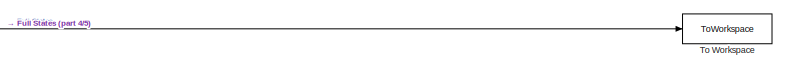
[diagram: root canvas - part 1/5, top right region]
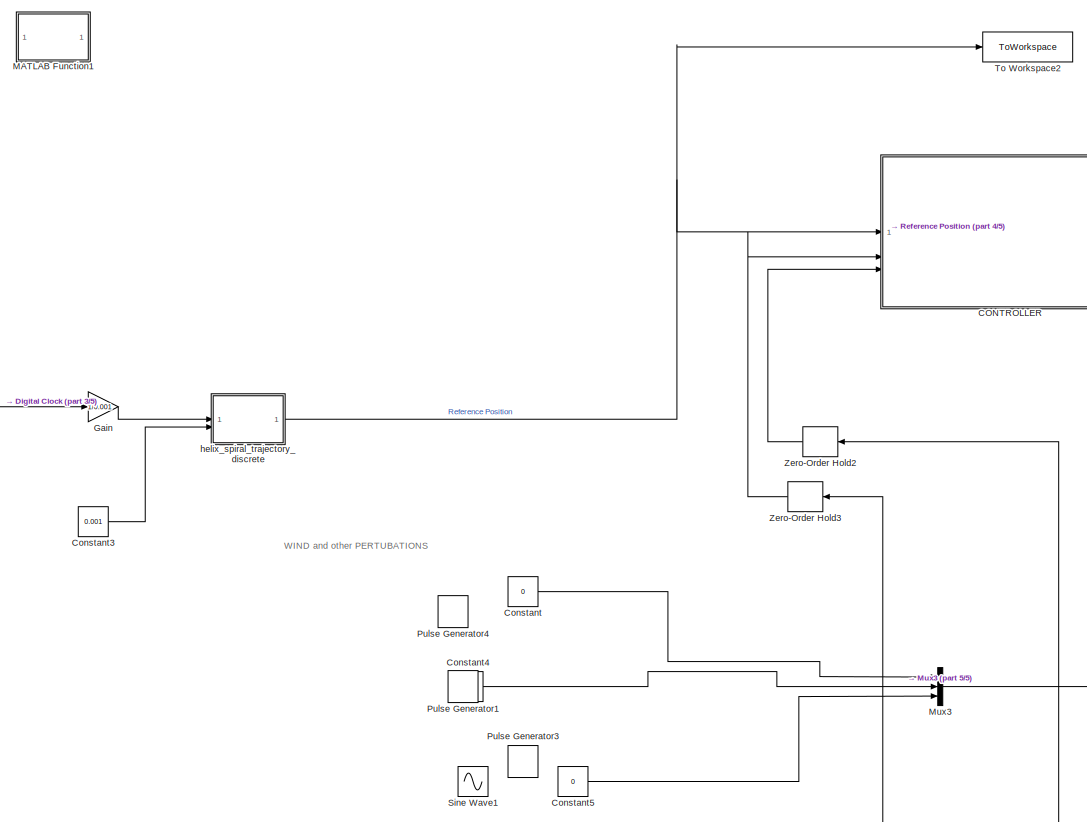
[diagram: root canvas - part 2/5, middle left region]
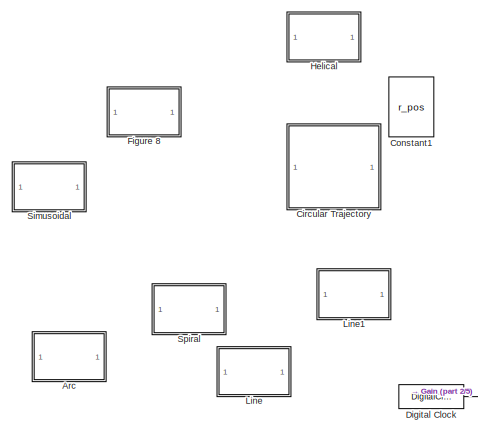
[diagram: root canvas - part 3/5, top left region]
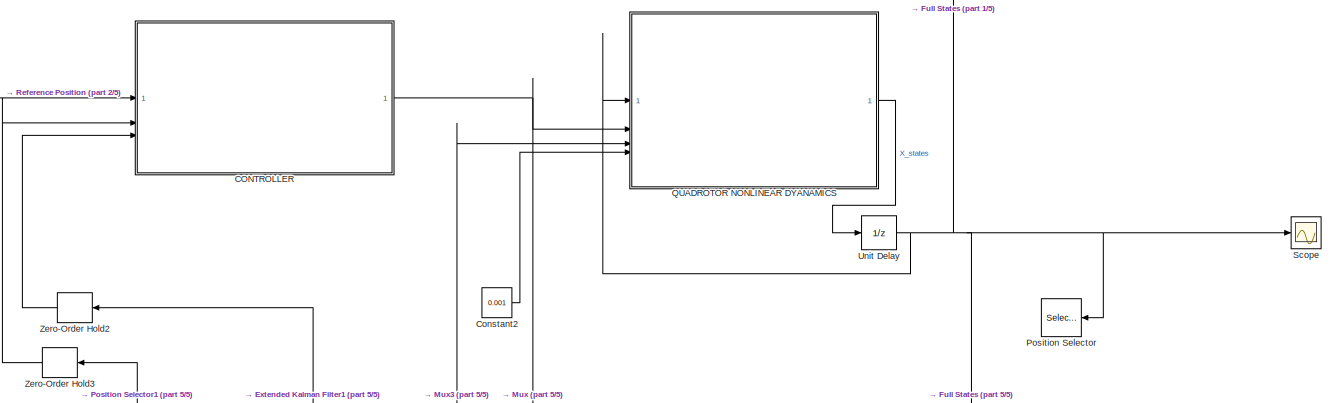
[diagram: root canvas - part 4/5, top center region]
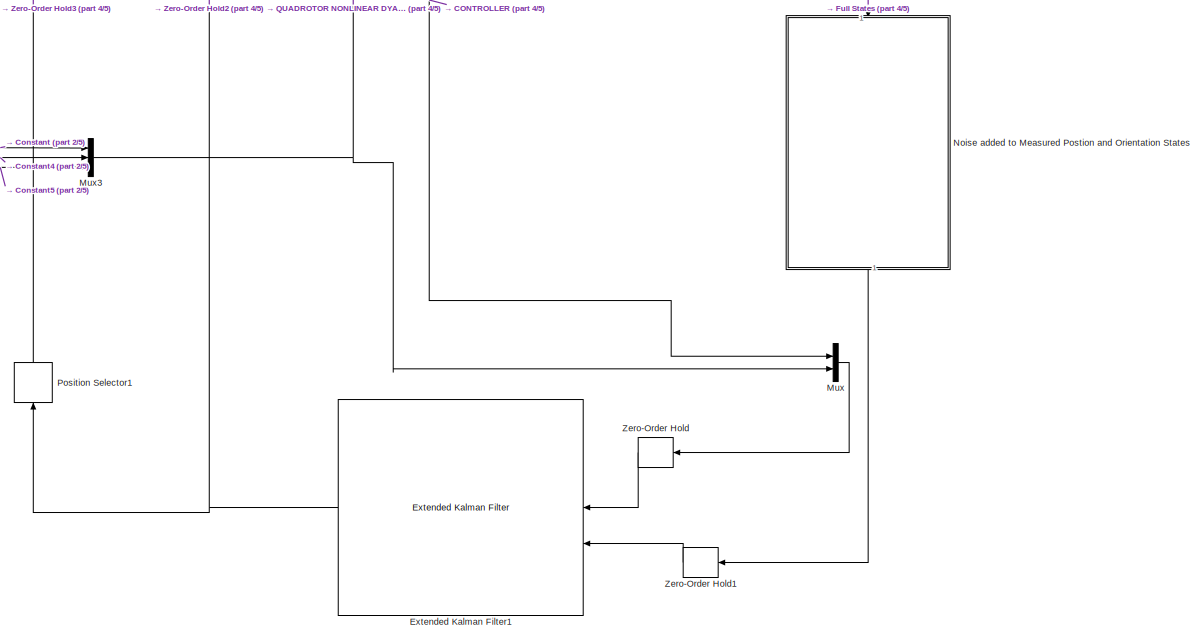
[diagram: root canvas - part 5/5, bottom center region]
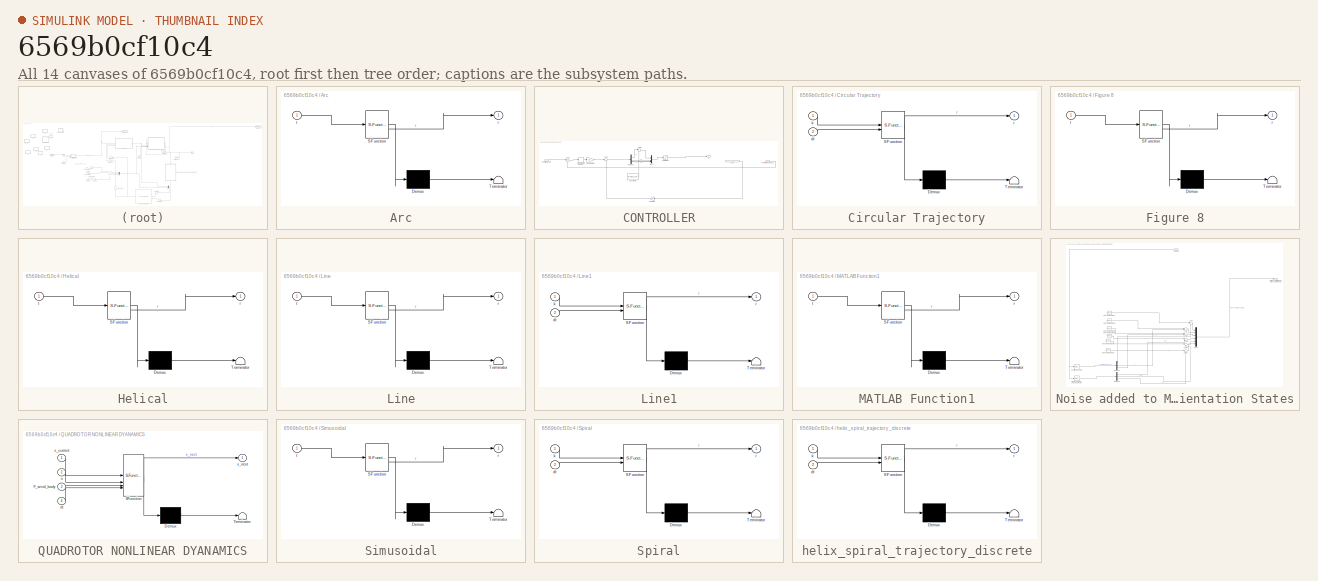
[diagram: thumbnail index - all 14 canvases of the model, root first then tree order]
MODEL slx_6569b0cf10c4
KIND model
CONFIG AbsTol = auto
CONFIG EnableMultiTasking = off
CONFIG FixedStep = auto
CONFIG MaxStep = auto
CONFIG MinStep = auto
CONFIG RelTol = 1e-3
CONFIG SampleTimeConstraint = Unconstrained
CONFIG SolverName = VariableStepAuto
CONFIG StartTime = 0.0
CONFIG StopTime = 10.0
BLOCK [SubSystem] Arc
  ErrorFcn = Stateflow.Translate.translate
  PermitHierarchicalResolution = ExplicitOnly
  SFBlockType = MATLAB Function
  TreatAsAtomicUnit = on
BLOCK [Demux] Arc/ Demux 
  Outputs = 1
BLOCK [S-Function] Arc/ SFunction 
  EnableBusSupport = on
  FunctionName = sf_sfun
  PortCounts = [1 2]
  SFcnIsStateOwnerBlock = off
  SFunctionDeploymentMode = off
  Tag = Stateflow S-Function 6
BLOCK [Terminator] Arc/ Terminator 
BLOCK [Outport] Arc/r
BLOCK [Inport] Arc/t
BLOCK [SubSystem] CONTROLLER
BLOCK [Constant] CONTROLLER/Constant2
  Value = m_val*g_val
BLOCK [Demux] CONTROLLER/Demux6
BLOCK [DiscreteIntegrator] CONTROLLER/Discrete-Time Integrator
  ICPrevOutput = DiscIntNeverNeededParam
  ICPrevScaledInput = DiscIntNeverNeededParam
  InitialConditionSetting = Auto
  SampleTime = 0.001
BLOCK [Gain] CONTROLLER/Integrator Gain
  Gain = Ki
  Multiplication = Matrix(K*u)
BLOCK [Gain] CONTROLLER/LQR Gain
  Gain = Kx
  Multiplication = Matrix(K*u)
BLOCK [Mux] CONTROLLER/Mux2
  DisplayOption = bar
BLOCK [Inport] CONTROLLER/Position feedback
  Port = 2
BLOCK [Inport] CONTROLLER/Position inputs
BLOCK [Saturate] CONTROLLER/Saturation1
  LowerLimit = [0; -0.15; -0.10; -0.10]
  UpperLimit = [40; 0.15; 0.1;0.1]
BLOCK [Sum] CONTROLLER/Sum
  Inputs = |--
BLOCK [Sum] CONTROLLER/Sum1
  Inputs = |+-
BLOCK [Sum] CONTROLLER/Sum3
  Inputs = |++
BLOCK [Outport] CONTROLLER/u
BLOCK [Inport] CONTROLLER/xhat
  IconDisplay = Signal name
  Port = 3
BLOCK [SubSystem] Circular Trajectory
  ErrorFcn = Stateflow.Translate.translate
  PermitHierarchicalResolution = ExplicitOnly
  SFBlockType = MATLAB Function
  TreatAsAtomicUnit = on
BLOCK [Demux] Circular Trajectory/ Demux 
  Outputs = 1
BLOCK [S-Function] Circular Trajectory/ SFunction 
  EnableBusSupport = on
  FunctionName = sf_sfun
  PortCounts = [2 2]
  SFcnIsStateOwnerBlock = off
  SFunctionDeploymentMode = off
  Tag = Stateflow S-Function 1
BLOCK [Terminator] Circular Trajectory/ Terminator 
BLOCK [Inport] Circular Trajectory/dt
  Port = 2
BLOCK [Inport] Circular Trajectory/k
BLOCK [Outport] Circular Trajectory/r
BLOCK [Constant] Constant
  Value = 0
BLOCK [Constant] Constant1
  Value = r_pos
  VectorParams1D = off
BLOCK [Constant] Constant2
  Value = 0.001
BLOCK [Constant] Constant3
  Value = 0.001
BLOCK [Constant] Constant4
  Value = 0
BLOCK [Constant] Constant5
  Value = 0
BLOCK [DigitalClock] Digital Clock
  SampleTime = 0.01
BLOCK [Reference] Extended Kalman Filter1  REF=sharedTrackingLibrary/Extended Kalman Filter
  LibrarySourceBlock = cstblocks/State Estimation/Extended Kalman Filter
  SourceBlock = sharedTrackingLibrary/Extended Kalman Filter
  SourceType = Extended Kalman Filter
BLOCK [SubSystem] Figure 8
  ErrorFcn = Stateflow.Translate.translate
  PermitHierarchicalResolution = ExplicitOnly
  SFBlockType = MATLAB Function
  TreatAsAtomicUnit = on
BLOCK [Demux] Figure 8/ Demux 
  Outputs = 1
BLOCK [S-Function] Figure 8/ SFunction 
  EnableBusSupport = on
  FunctionName = sf_sfun
  PortCounts = [1 2]
  SFcnIsStateOwnerBlock = off
  SFunctionDeploymentMode = off
  Tag = Stateflow S-Function 9
BLOCK [Terminator] Figure 8/ Terminator 
BLOCK [Outport] Figure 8/r
BLOCK [Inport] Figure 8/t
BLOCK [Gain] Gain
  Gain = 1/0.001
BLOCK [SubSystem] Helical
  ErrorFcn = Stateflow.Translate.translate
  PermitHierarchicalResolution = ExplicitOnly
  SFBlockType = MATLAB Function
  TreatAsAtomicUnit = on
BLOCK [Demux] Helical/ Demux 
  Outputs = 1
BLOCK [S-Function] Helical/ SFunction 
  EnableBusSupport = on
  FunctionName = sf_sfun
  PortCounts = [1 2]
  SFcnIsStateOwnerBlock = off
  SFunctionDeploymentMode = off
  Tag = Stateflow S-Function 10
BLOCK [Terminator] Helical/ Terminator 
BLOCK [Outport] Helical/r
BLOCK [Inport] Helical/t
BLOCK [SubSystem] Line
  ErrorFcn = Stateflow.Translate.translate
  PermitHierarchicalResolution = ExplicitOnly
  SFBlockType = MATLAB Function
  TreatAsAtomicUnit = on
BLOCK [Demux] Line/ Demux 
  Outputs = 1
BLOCK [S-Function] Line/ SFunction 
  EnableBusSupport = on
  FunctionName = sf_sfun
  PortCounts = [1 2]
  SFcnIsStateOwnerBlock = off
  SFunctionDeploymentMode = off
  Tag = Stateflow S-Function 2
BLOCK [Terminator] Line/ Terminator 
BLOCK [Outport] Line/r
BLOCK [Inport] Line/t
BLOCK [SubSystem] Line1
  ErrorFcn = Stateflow.Translate.translate
  PermitHierarchicalResolution = ExplicitOnly
  SFBlockType = MATLAB Function
  TreatAsAtomicUnit = on
BLOCK [Demux] Line1/ Demux 
  Outputs = 1
BLOCK [S-Function] Line1/ SFunction 
  EnableBusSupport = on
  FunctionName = sf_sfun
  PortCounts = [2 2]
  SFcnIsStateOwnerBlock = off
  SFunctionDeploymentMode = off
  Tag = Stateflow S-Function 5
BLOCK [Terminator] Line1/ Terminator 
BLOCK [Inport] Line1/dt
  Port = 2
BLOCK [Inport] Line1/k
BLOCK [Outport] Line1/r
BLOCK [SubSystem] MATLAB Function1
  ErrorFcn = Stateflow.Translate.translate
  PermitHierarchicalResolution = ExplicitOnly
  SFBlockType = MATLAB Function
  TreatAsAtomicUnit = on
BLOCK [Demux] MATLAB Function1/ Demux 
  Outputs = 1
BLOCK [S-Function] MATLAB Function1/ SFunction 
  EnableBusSupport = on
  FunctionName = sf_sfun
  PortCounts = [1 2]
  SFcnIsStateOwnerBlock = off
  SFunctionDeploymentMode = off
  Tag = Stateflow S-Function 3
BLOCK [Terminator] MATLAB Function1/ Terminator 
BLOCK [Outport] MATLAB Function1/r
BLOCK [Inport] MATLAB Function1/t
BLOCK [Mux] Mux
  DisplayOption = bar
  Inputs = 2
BLOCK [Mux] Mux3
  DisplayOption = bar
  Inputs = 3
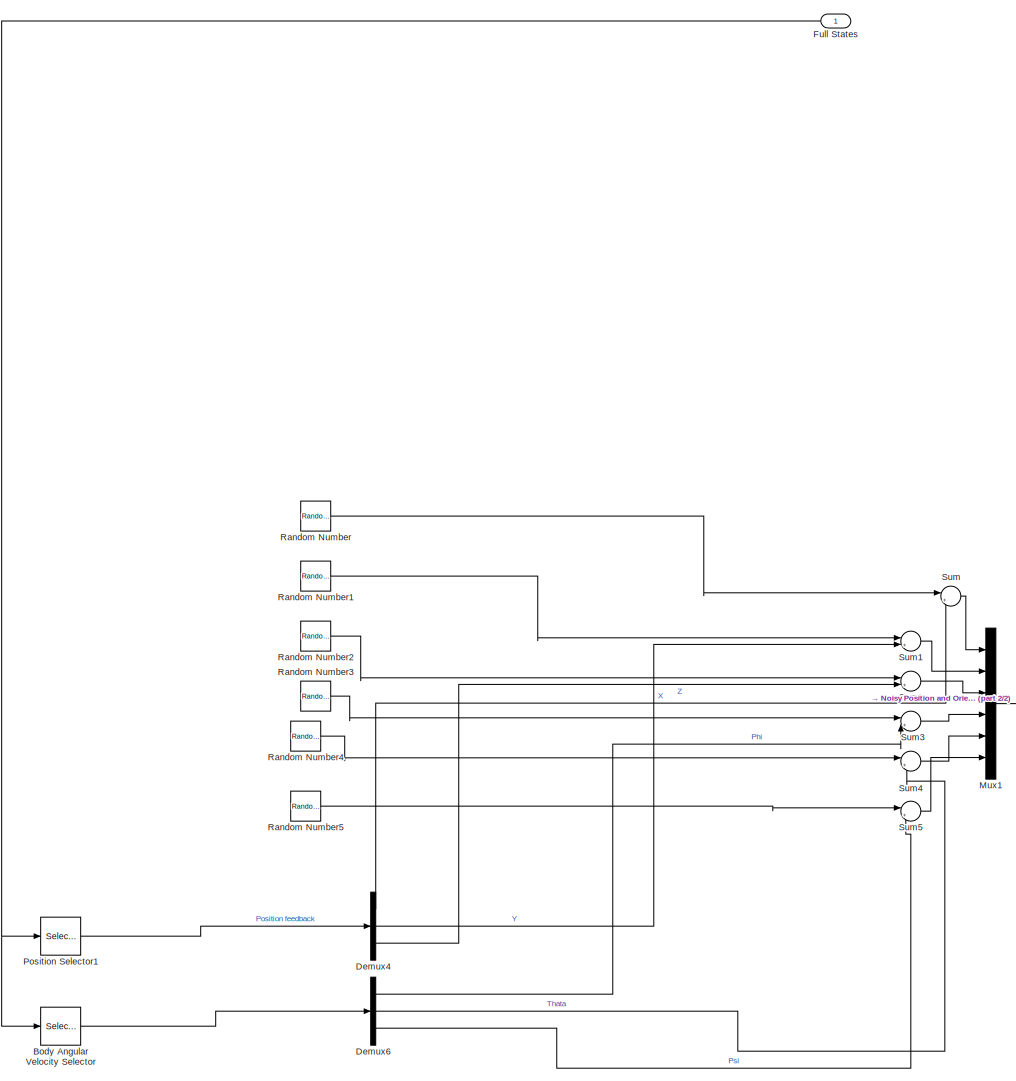
[diagram: Noise added to Measured Postion and Orientation States - part 1/2, left side, full height]
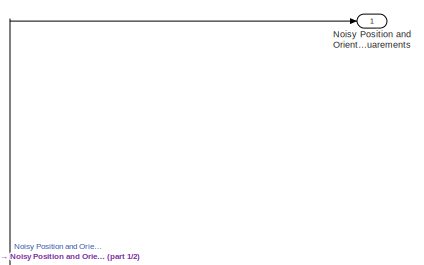
[diagram: Noise added to Measured Postion and Orientation States - part 2/2, middle right region]
BLOCK [SubSystem] Noise added to Measured Postion and Orientation States
  NameLocation = left
BLOCK [Selector] Noise added to Measured Postion and Orientation States/Body Angular Velocity Selector
  IndexOptions = Index vector (dialog)
  Indices = [10 11 12]
  InputPortWidth = 12
  OutputSizes = 1
BLOCK [Demux] Noise added to Measured Postion and Orientation States/Demux4
  Outputs = 3
BLOCK [Demux] Noise added to Measured Postion and Orientation States/Demux6
  Outputs = 3
BLOCK [Inport] Noise added to Measured Postion and Orientation States/Full States
BLOCK [Mux] Noise added to Measured Postion and Orientation States/Mux1
  DisplayOption = bar
  Inputs = 6
BLOCK [Outport] Noise added to Measured Postion and Orientation States/Noisy Position and Orientation Mesuarements
BLOCK [Selector] Noise added to Measured Postion and Orientation States/Position Selector1
  IndexOptions = Index vector (dialog)
  Indices = [1 2 3]
  InputPortWidth = 12
  OutputSizes = 1
BLOCK [RandomNumber] Noise added to Measured Postion and Orientation States/Random Number
  SampleTime = 0.1
  Variance = 0.05*0.05
BLOCK [RandomNumber] Noise added to Measured Postion and Orientation States/Random Number1
  SampleTime = 0.1
  Variance = 0.05*0.05
BLOCK [RandomNumber] Noise added to Measured Postion and Orientation States/Random Number2
  SampleTime = 0.1
  Variance = 0.05*0.05
BLOCK [RandomNumber] Noise added to Measured Postion and Orientation States/Random Number3
  Mean = 0.01*0.01
  SampleTime = 0.1
BLOCK [RandomNumber] Noise added to Measured Postion and Orientation States/Random Number4
  Mean = 0.01*0.01
  SampleTime = 0.1
BLOCK [RandomNumber] Noise added to Measured Postion and Orientation States/Random Number5
  Mean = 0.01*0.01
  SampleTime = 0.1
BLOCK [Sum] Noise added to Measured Postion and Orientation States/Sum
  Inputs = |++
BLOCK [Sum] Noise added to Measured Postion and Orientation States/Sum1
  Inputs = |++
BLOCK [Sum] Noise added to Measured Postion and Orientation States/Sum2
  Inputs = |++
BLOCK [Sum] Noise added to Measured Postion and Orientation States/Sum3
  Inputs = |++
BLOCK [Sum] Noise added to Measured Postion and Orientation States/Sum4
  Inputs = |++
BLOCK [Sum] Noise added to Measured Postion and Orientation States/Sum5
  Inputs = |++
BLOCK [Selector] Position Selector
  IndexOptions = Index vector (dialog)
  Indices = [1 2 3]
  InputPortWidth = 12
  OutputSizes = 1
BLOCK [Selector] Position Selector1
  IndexOptions = Index vector (dialog)
  Indices = [1 2 3]
  InputPortWidth = 12
  NameLocation = right
  OutputSizes = 1
BLOCK [DiscretePulseGenerator] Pulse Generator1
  Amplitude = 10
  Period = 10
  PhaseDelay = 20
  PulseWidth = 5
  SampleTime = 10
BLOCK [DiscretePulseGenerator] Pulse Generator3
  Amplitude = 3
  Period = 5
  PhaseDelay = 100
  PulseType = Time based
BLOCK [DiscretePulseGenerator] Pulse Generator4
  Amplitude = 3
  Period = 10
  PhaseDelay = 50
  PulseType = Time based
  PulseWidth = 5
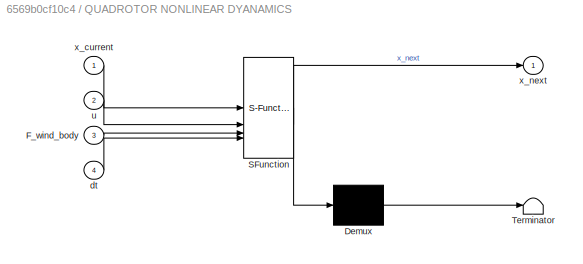
BLOCK [SubSystem] QUADROTOR NONLINEAR DYANAMICS
  ErrorFcn = Stateflow.Translate.translate
  PermitHierarchicalResolution = ExplicitOnly
  SFBlockType = MATLAB Function
  TreatAsAtomicUnit = on
BLOCK [Demux] QUADROTOR NONLINEAR DYANAMICS/ Demux 
  Outputs = 1
BLOCK [S-Function] QUADROTOR NONLINEAR DYANAMICS/ SFunction 
  EnableBusSupport = on
  FunctionName = sf_sfun
  PortCounts = [4 2]
  SFcnIsStateOwnerBlock = off
  SFunctionDeploymentMode = off
  Tag = Stateflow S-Function 4
BLOCK [Terminator] QUADROTOR NONLINEAR DYANAMICS/ Terminator 
BLOCK [Inport] QUADROTOR NONLINEAR DYANAMICS/F_wind_body
  Port = 3
BLOCK [Inport] QUADROTOR NONLINEAR DYANAMICS/dt
  Port = 4
BLOCK [Inport] QUADROTOR NONLINEAR DYANAMICS/u
  Port = 2
BLOCK [Inport] QUADROTOR NONLINEAR DYANAMICS/x_current
BLOCK [Outport] QUADROTOR NONLINEAR DYANAMICS/x_next
BLOCK [Scope] Scope
  Floating = off
  NumInputPorts = 1
  ScopeSpecificationString = Simulink.scopes.TimeScopeBlockCfg('CurrentConfiguration', extmgr.ConfigurationSet(extmgr.Configuration('Core','General UI',true),extmgr.Configuration('Core','Source UI',true),extmgr.Configuration('Sources','WiredSimulink',true,'DataLoggingVariableName','ScopeData1'),extmgr.Configuration('Visuals','Time Domain',true),extmgr.Configuration('Tools','Plot Navigation',true),extmgr.Configuration('Tools',...<+40ch>
BLOCK [SubSystem] Simusoidal
  ErrorFcn = Stateflow.Translate.translate
  PermitHierarchicalResolution = ExplicitOnly
  SFBlockType = MATLAB Function
  TreatAsAtomicUnit = on
BLOCK [Demux] Simusoidal/ Demux 
  Outputs = 1
BLOCK [S-Function] Simusoidal/ SFunction 
  EnableBusSupport = on
  FunctionName = sf_sfun
  PortCounts = [1 2]
  SFcnIsStateOwnerBlock = off
  SFunctionDeploymentMode = off
  Tag = Stateflow S-Function 7
BLOCK [Terminator] Simusoidal/ Terminator 
BLOCK [Outport] Simusoidal/r
BLOCK [Inport] Simusoidal/t
BLOCK [Sin] Sine Wave1
  Amplitude = 5
  Frequency = 0.5
  SampleTime = 0
BLOCK [SubSystem] Spiral
  ErrorFcn = Stateflow.Translate.translate
  PermitHierarchicalResolution = ExplicitOnly
  SFBlockType = MATLAB Function
  TreatAsAtomicUnit = on
BLOCK [Demux] Spiral/ Demux 
  Outputs = 1
BLOCK [S-Function] Spiral/ SFunction 
  EnableBusSupport = on
  FunctionName = sf_sfun
  PortCounts = [2 2]
  SFcnIsStateOwnerBlock = off
  SFunctionDeploymentMode = off
  Tag = Stateflow S-Function 8
BLOCK [Terminator] Spiral/ Terminator 
BLOCK [Inport] Spiral/dt
  Port = 2
BLOCK [Inport] Spiral/k
BLOCK [Outport] Spiral/r
BLOCK [ToWorkspace] To Workspace
  MaxDataPoints = inf
  SampleTime = -1
  VariableName = X_states
BLOCK [ToWorkspace] To Workspace2
  FixptAsFi = on
  MaxDataPoints = inf
  SampleTime = -1
  SaveFormat = Timeseries
  VariableName = r_traj
BLOCK [UnitDelay] Unit Delay
  HasFrameUpgradeWarning = on
  SampleTime = 0.001
BLOCK [ZeroOrderHold] Zero-Order Hold
  SampleTime = 0.001
BLOCK [ZeroOrderHold] Zero-Order Hold1
  SampleTime = 0.001
BLOCK [ZeroOrderHold] Zero-Order Hold2
  SampleTime = 0.001
BLOCK [ZeroOrderHold] Zero-Order Hold3
  SampleTime = 0.001
BLOCK [SubSystem] helix_spiral_trajectory_discrete
  ErrorFcn = Stateflow.Translate.translate
  PermitHierarchicalResolution = ExplicitOnly
  SFBlockType = MATLAB Function
  TreatAsAtomicUnit = on
BLOCK [Demux] helix_spiral_trajectory_discrete/ Demux 
  Outputs = 1
BLOCK [S-Function] helix_spiral_trajectory_discrete/ SFunction 
  EnableBusSupport = on
  FunctionName = sf_sfun
  PortCounts = [2 2]
  SFcnIsStateOwnerBlock = off
  SFunctionDeploymentMode = off
  Tag = Stateflow S-Function 11
BLOCK [Terminator] helix_spiral_trajectory_discrete/ Terminator 
BLOCK [Inport] helix_spiral_trajectory_discrete/dt
  Port = 2
BLOCK [Inport] helix_spiral_trajectory_discrete/k
BLOCK [Outport] helix_spiral_trajectory_discrete/r
ANNOTATION (root): WIND and other PERTUBATIONS
LINE CONTROLLER/Constant2:1 -> CONTROLLER/Sum3:2
LINE CONTROLLER/Demux6:1 -> CONTROLLER/Sum3:1
LINE CONTROLLER/Demux6:2 -> CONTROLLER/Mux2:2
LINE CONTROLLER/Demux6:3 -> CONTROLLER/Mux2:3
LINE CONTROLLER/Demux6:4 -> CONTROLLER/Mux2:4
LINE CONTROLLER/Discrete-Time Integrator:1 -> CONTROLLER/Integrator Gain:1
LINE CONTROLLER/Integrator Gain:1 -> CONTROLLER/Sum:1
LINE CONTROLLER/LQR Gain:1 -> CONTROLLER/Sum:2
LINE CONTROLLER/Mux2:1 -> CONTROLLER/Saturation1:1
LINE CONTROLLER/Position feedback:1 -> CONTROLLER/Sum1:2
LINE CONTROLLER/Position inputs:1 -> CONTROLLER/Sum1:1
LINE CONTROLLER/Saturation1:1 -> CONTROLLER/u:1
LINE CONTROLLER/Sum1:1 -> CONTROLLER/Discrete-Time Integrator:1
LINE CONTROLLER/Sum3:1 -> CONTROLLER/Mux2:1
LINE CONTROLLER/Sum:1 -> CONTROLLER/Demux6:1
LINE CONTROLLER/xhat:1 -> CONTROLLER/LQR Gain:1
NET CONTROLLER:1 -> Mux:1, QUADROTOR NONLINEAR DYANAMICS:2
LINE Constant2:1 -> QUADROTOR NONLINEAR DYANAMICS:4
LINE Constant3:1 -> helix_spiral_trajectory_discrete:2
LINE Constant4:1 -> Mux3:2
LINE Constant5:1 -> Mux3:3
LINE Constant:1 -> Mux3:1
LINE Digital Clock:1 -> Gain:1
NET Extended Kalman Filter1:1 -> Position Selector1:1, Zero-Order Hold2:1
LINE Gain:1 -> helix_spiral_trajectory_discrete:1
NET Mux3:1 -> Mux:2, QUADROTOR NONLINEAR DYANAMICS:3
LINE Mux:1 -> Zero-Order Hold:1
LINE Noise added to Measured Postion and Orientation States/Body Angular Velocity Selector:1 -> Noise added to Measured Postion and Orientation States/Demux6:1
LINE Noise added to Measured Postion and Orientation States/Demux4:1 -> Noise added to Measured Postion and Orientation States/Sum:2
LINE Noise added to Measured Postion and Orientation States/Demux4:2 -> Noise added to Measured Postion and Orientation States/Sum1:2
LINE Noise added to Measured Postion and Orientation States/Demux4:3 -> Noise added to Measured Postion and Orientation States/Sum2:2
LINE Noise added to Measured Postion and Orientation States/Demux6:1 -> Noise added to Measured Postion and Orientation States/Sum3:2
LINE Noise added to Measured Postion and Orientation States/Demux6:2 -> Noise added to Measured Postion and Orientation States/Sum4:2
LINE Noise added to Measured Postion and Orientation States/Demux6:3 -> Noise added to Measured Postion and Orientation States/Sum5:2
NET Noise added to Measured Postion and Orientation States/Full States:1 -> Noise added to Measured Postion and Orientation States/Body Angular Velocity Selector:1, Noise added to Measured Postion and Orientation States/Position Selector1:1
LINE Noise added to Measured Postion and Orientation States/Mux1:1 -> Noise added to Measured Postion and Orientation States/Noisy Position and Orientation Mesuarements:1
LINE Noise added to Measured Postion and Orientation States/Position Selector1:1 -> Noise added to Measured Postion and Orientation States/Demux4:1
LINE Noise added to Measured Postion and Orientation States/Random Number1:1 -> Noise added to Measured Postion and Orientation States/Sum1:1
LINE Noise added to Measured Postion and Orientation States/Random Number2:1 -> Noise added to Measured Postion and Orientation States/Sum2:1
LINE Noise added to Measured Postion and Orientation States/Random Number3:1 -> Noise added to Measured Postion and Orientation States/Sum3:1
LINE Noise added to Measured Postion and Orientation States/Random Number4:1 -> Noise added to Measured Postion and Orientation States/Sum4:1
LINE Noise added to Measured Postion and Orientation States/Random Number5:1 -> Noise added to Measured Postion and Orientation States/Sum5:1
LINE Noise added to Measured Postion and Orientation States/Random Number:1 -> Noise added to Measured Postion and Orientation States/Sum:1
LINE Noise added to Measured Postion and Orientation States/Sum1:1 -> Noise added to Measured Postion and Orientation States/Mux1:2
LINE Noise added to Measured Postion and Orientation States/Sum2:1 -> Noise added to Measured Postion and Orientation States/Mux1:3
LINE Noise added to Measured Postion and Orientation States/Sum3:1 -> Noise added to Measured Postion and Orientation States/Mux1:4
LINE Noise added to Measured Postion and Orientation States/Sum4:1 -> Noise added to Measured Postion and Orientation States/Mux1:5
LINE Noise added to Measured Postion and Orientation States/Sum5:1 -> Noise added to Measured Postion and Orientation States/Mux1:6
LINE Noise added to Measured Postion and Orientation States/Sum:1 -> Noise added to Measured Postion and Orientation States/Mux1:1
LINE Noise added to Measured Postion and Orientation States:1 -> Zero-Order Hold1:1
LINE Position Selector1:1 -> Zero-Order Hold3:1
LINE QUADROTOR NONLINEAR DYANAMICS:1 -> Unit Delay:1
NET Unit Delay:1 -> Noise added to Measured Postion and Orientation States:1, Position Selector:1, QUADROTOR NONLINEAR DYANAMICS:1, Scope:1, To Workspace:1
LINE Zero-Order Hold1:1 -> Extended Kalman Filter1:2
LINE Zero-Order Hold2:1 -> CONTROLLER:3
LINE Zero-Order Hold3:1 -> CONTROLLER:2
LINE Zero-Order Hold:1 -> Extended Kalman Filter1:1
NET helix_spiral_trajectory_discrete:1 -> CONTROLLER:1, To Workspace2:1
note: NET lines group one-source signal fan-out (src -> all destinations, sorted); 1:1 wires keep LINE
CHART Circular Trajectory states=1 transitions=1
  STATE_LABEL 'eML_blk_kernel()'
  STATE_LABEL 'SCRIPT:\n\nfunction r = trajectory_discrete(k, dt)\n    % Parameters (you can also pass these in or make them tunable)\n    R = 5;          % Radius of circle (meters)\n    omega = 0.1;    % Angular frequency (rad/s)\n    z0 = 10;        % Base altitude (meters)\n    A = 2;          % Amplitude of vertical oscillation (meters)\n    omega_z = 0.05; % Vertical oscillation frequency (rad/s)\n    x_offset = 0;...<+420ch>'
CHART Line states=1 transitions=1
  STATE_LABEL 'eML_blk_kernel()'
  STATE_LABEL 'SCRIPT:\nfunction r = linear_ref(t)\n    % Define total time and start/end positions\n    T_total = 50;  % duration of trajectory\n    r_start = [0; 0; 0];\n    r_end   = [5; 5; 5];\n\n    % Clamp progress between 0 and 1\n    progress = min(max(t / T_total, 0), 1);\n\n    % Linear interpolation\n    r = r_start + (r_end - r_start) * progress;\nend\n'
CHART MATLAB Function1 states=1 transitions=1
  STATE_LABEL 'eML_blk_kernel()'
  STATE_LABEL 'SCRIPT:\nfunction r = rectangular_trajectory(t)\n    % Rectangular trajectory parameters\n    x_length = 10;       % Rectangle length (x-direction) in meters\n    y_width = 8;         % Rectangle width (y-direction) in meters\n    z_height = 5;        % Z height in meters\n    duration = 500;       % Total duration in seconds\n    \n    % Add initial offset to match quadcopter starting position\n    x_offs...<+1423ch>'
CHART QUADROTOR NONLINEAR DYANAMICS states=1 transitions=1
  STATE_LABEL 'eML_blk_kernel()'
  STATE_LABEL 'SCRIPT:\nfunction x_next = quadrotor_dynamics_discrete(x_current, u, F_wind_body, dt)\n    % Get the state derivatives from your continuous-time model\n    dx = quadrotor_dynamics(u, x_current, F_wind_body);\n    \n    % Apply Forward Euler discretization\n    x_next = x_current + dt * dx;\nend'
CHART Line1 states=1 transitions=1
  STATE_LABEL 'eML_blk_kernel()'
  STATE_LABEL 'SCRIPT:\nfunction r = spiral_trajectory_discrete(k, dt)\n    % Parameters for spiral trajectory\n    R_start = 1;       % Starting radius (meters)\n    R_end = 5;         % Final radius (meters)\n    omega = 0.1;       % Angular frequency (rad/s)\n    z0 = 10;           % Constant altitude (meters)\n    spiral_duration = 60; % Time to reach final radius (seconds)\n    x_offset = 0;      % Center x-coordin...<+489ch>'
CHART Arc states=1 transitions=1
  STATE_LABEL 'eML_blk_kernel()'
  STATE_LABEL 'SCRIPT:\nfunction r = arc_trajectory(t)\n    % Arc parameters\n    R = 5;\n    theta_start = 0;\n    theta_end = pi/2;\n    duration = 10;\n    z_const = 5;\n    \n    % Add initial offset to match quadcopter starting position\n    x_offset = 0;  % Starting at x=0\n    y_offset = 0;  % Starting at y=0\n    z_offset = 0;  % Starting at z=0\n    \n    % Time progression\n    progress = min(max(t / duration, 0), 1)...<+340ch>'
CHART Simusoidal states=1 transitions=1
  STATE_LABEL 'eML_blk_kernel()'
  STATE_LABEL 'SCRIPT:\nfunction r = sinusoidal_trajectory(t)\n    % Sinusoidal trajectory with varying frequencies\n    % Parameters\n    x_amp = 5;           % X amplitude in meters\n    y_amp = 3;           % Y amplitude in meters\n    z_max = 5;           % Maximum z height in meters\n    duration = 500;       % Total duration in seconds\n    \n    % Frequency parameters\n    f_start = 0.1;       % Starting frequency ...<+817ch>'
CHART Spiral states=1 transitions=1
  STATE_LABEL 'eML_blk_kernel()'
  STATE_LABEL 'SCRIPT:\nfunction r = spiral_trajectory_discrete(k, dt)\n    % Spiral Trajectory Generator (Discrete Version)\n    \n    % Parameters\n    R = 5;           % Radius of spiral (constant)\n    duration = 500;  % Total time for spiral traversal\n    turns = 2;       % Number of full 2π turns\n    height = 5;      % Total height climbed\n    \n    % Convert discrete step k to time\n    t = k * dt;\n    \n    % Tim...<+360ch>'
CHART Figure 8 states=1 transitions=1
  STATE_LABEL 'eML_blk_kernel()'
  STATE_LABEL 'SCRIPT:\nfunction r = figure_eight_trajectory(t)\n    % Parameters\n    R = 5;               % Radius of the loops\n    omega = 0.2;         % Angular speed [rad/s]\n    duration = 500;       % Total time to complete one figure-eight\n    z_const = 5;         % Constant height\n    \n    % Initial offset (optional)\n    x_offset = 0;\n    y_offset = 0;\n    z_offset = 0;\n\n    % Time progression\n    progress ...<+251ch>'
CHART Helical states=1 transitions=1
  STATE_LABEL 'eML_blk_kernel()'
  STATE_LABEL 'SCRIPT:\nfunction r = helical_trajectory(t)\n    % Parameters\n    R = 5;              % Radius in meters\n    omega = 2 * pi / 20; % Angular speed (rad/s) for smooth loops\n    z_max = 10;         % Max height\n    duration = 500;     % Total trajectory time in seconds\n\n    % Time progress normalized\n    progress = min(max(t / duration, 0), 1);\n    theta = omega * t;\n\n    % Reference position, offset t...<+168ch>'
CHART helix_spiral_trajectory_discrete states=1 transitions=1
  STATE_LABEL 'eML_blk_kernel()'
  STATE_LABEL 'SCRIPT:\nfunction r = helix_spiral_trajectory_discrete(k, dt)\n    % Helix Spiral Trajectory Generator (Discrete Version)\n    \n    % Parameters\n    R = 5;           % Radius of spiral (meters)\n    duration = 500;   % Total time for spiral traversal (seconds)\n    turns = 2;       % Number of full 2π turns\n    height = 5;      % Total height to climb (meters)\n    \n    % Convert discrete step k to time...<+452ch>'
CHART  states=0 transitions=0
CHART  states=0 transitions=0
CHART  states=0 transitions=0
CHART  states=0 transitions=0
CHART  states=0 transitions=0
CHART  states=0 transitions=0
CHART  states=0 transitions=0
CHART  states=0 transitions=0
CHART  states=0 transitions=0
CHART  states=0 transitions=0
CHART  states=0 transitions=0
